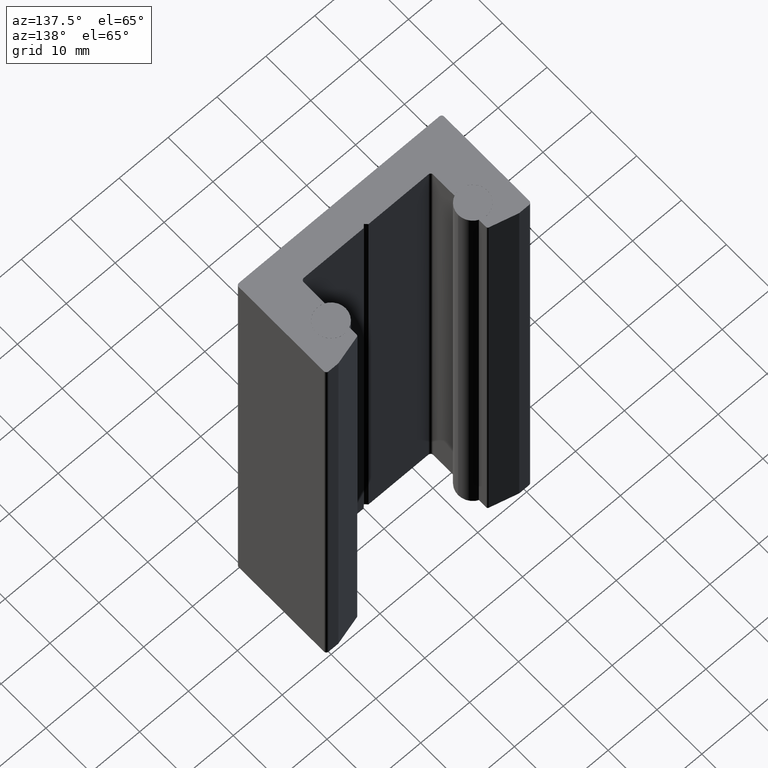
[diagram: clean part render]
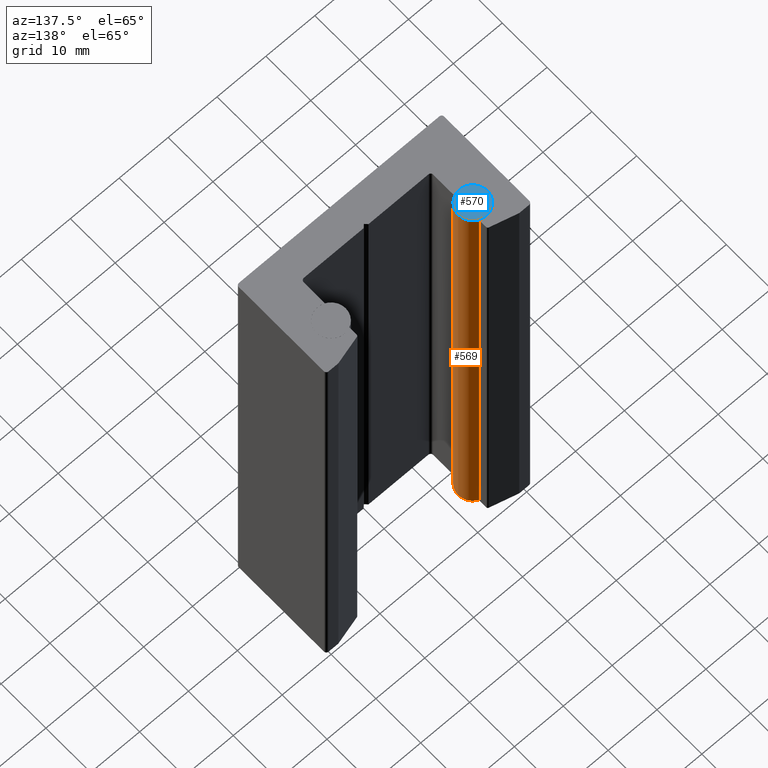
[diagram: same view with the hole feature highlighted: cylindrical wall and planar end face, labeled with their STEP entity ids]
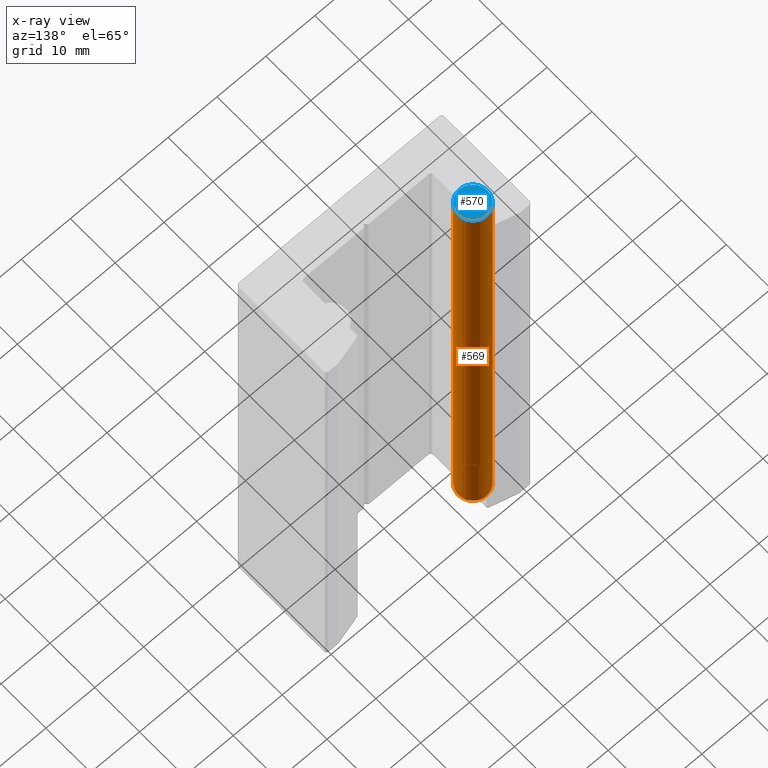
[diagram: x-ray of the same camera — body ghosted, the hole faces saturated]
A machine part, auxiliary view. The highlighted faces form one hole feature of diameter 6 mm: the cylindrical wall (entity #569, orange) and its adjacent planar end face (entity #570, blue) — they share a circular edge in the B-rep.
The next image is the same camera in x-ray (body ghosted, the hole faces saturated) — the bore reads through the body.
Wall:
#78=FACE_OUTER_BOUND('',#108,.T.);
#108=EDGE_LOOP('',(#525,#526,#527,#528));
#165=LINE('',#1026,#221);
#221=VECTOR('',#856,3.);
#242=CIRCLE('',#686,3.);
#243=CIRCLE('',#688,3.);
#294=VERTEX_POINT('',#1021);
#295=VERTEX_POINT('',#1024);
#371=EDGE_CURVE('',#294,#294,#242,.T.);
#372=EDGE_CURVE('',#295,#295,#243,.T.);
#373=EDGE_CURVE('',#295,#294,#165,.T.);
#525=ORIENTED_EDGE('',*,*,#372,.T.);
#526=ORIENTED_EDGE('',*,*,#373,.T.);
#527=ORIENTED_EDGE('',*,*,#371,.T.);
#528=ORIENTED_EDGE('',*,*,#373,.F.);
#540=CYLINDRICAL_SURFACE('',#687,3.);
#569=ADVANCED_FACE('',(#78),#540,.T.);
#686=AXIS2_PLACEMENT_3D('',#1022,#850,#851);
#687=AXIS2_PLACEMENT_3D('',#1023,#852,#853);
#688=AXIS2_PLACEMENT_3D('',#1025,#854,#855);
#850=DIRECTION('center_axis',(0.,0.,1.));
#851=DIRECTION('ref_axis',(-1.,0.,0.));
#852=DIRECTION('center_axis',(0.,0.,1.));
#853=DIRECTION('ref_axis',(-1.,0.,0.));
#854=DIRECTION('center_axis',(0.,0.,-1.));
#855=DIRECTION('ref_axis',(-1.,0.,0.));
#856=DIRECTION('',(0.,0.,-1.));
#1021=CARTESIAN_POINT('',(3.,3.67394039744206E-16,-50.));
#1022=CARTESIAN_POINT('Origin',(0.,0.,-50.));
#1023=CARTESIAN_POINT('Origin',(0.,0.,0.));
#1024=CARTESIAN_POINT('',(3.,3.67394039744206E-16,50.));
#1025=CARTESIAN_POINT('Origin',(0.,0.,50.));
#1026=CARTESIAN_POINT('',(3.,3.67394039744206E-16,0.));
End face:
#49=PLANE('',#689);
#79=FACE_OUTER_BOUND('',#109,.T.);
#109=EDGE_LOOP('',(#529));
#243=CIRCLE('',#688,3.);
#295=VERTEX_POINT('',#1024);
#372=EDGE_CURVE('',#295,#295,#243,.T.);
#529=ORIENTED_EDGE('',*,*,#372,.F.);
#570=ADVANCED_FACE('',(#79),#49,.F.);
#688=AXIS2_PLACEMENT_3D('',#1025,#854,#855);
#689=AXIS2_PLACEMENT_3D('',#1027,#857,#858);
#854=DIRECTION('center_axis',(0.,0.,-1.));
#855=DIRECTION('ref_axis',(-1.,0.,0.));
#857=DIRECTION('center_axis',(0.,0.,-1.));
#858=DIRECTION('ref_axis',(-1.,0.,0.));
#1024=CARTESIAN_POINT('',(3.,3.67394039744206E-16,50.));
#1025=CARTESIAN_POINT('Origin',(0.,0.,50.));
#1027=CARTESIAN_POINT('Origin',(0.,0.,50.));